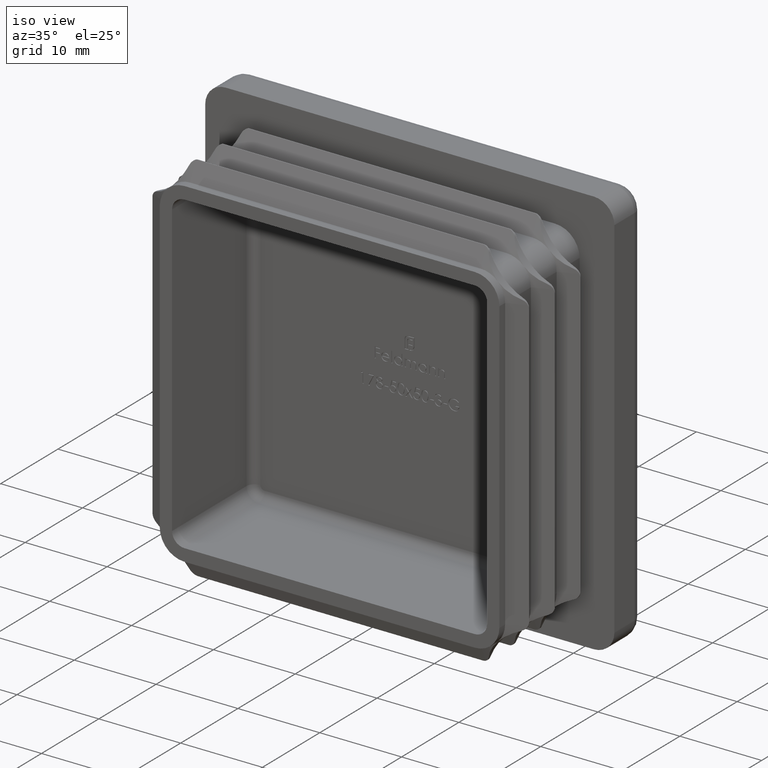
[diagram: clean part render]
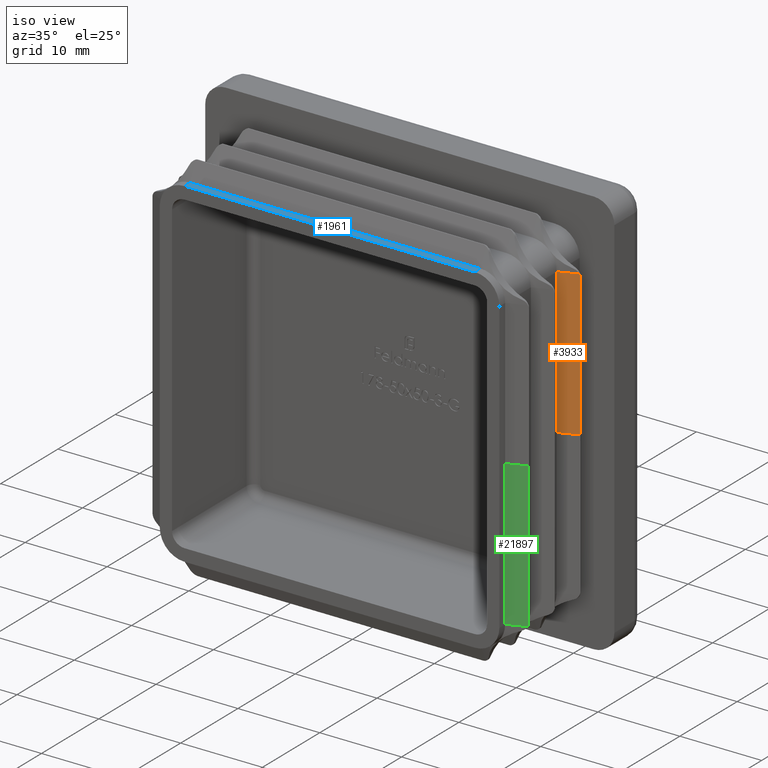
[diagram: same view with three faces highlighted in distinct colors, each labeled with its STEP entity id]
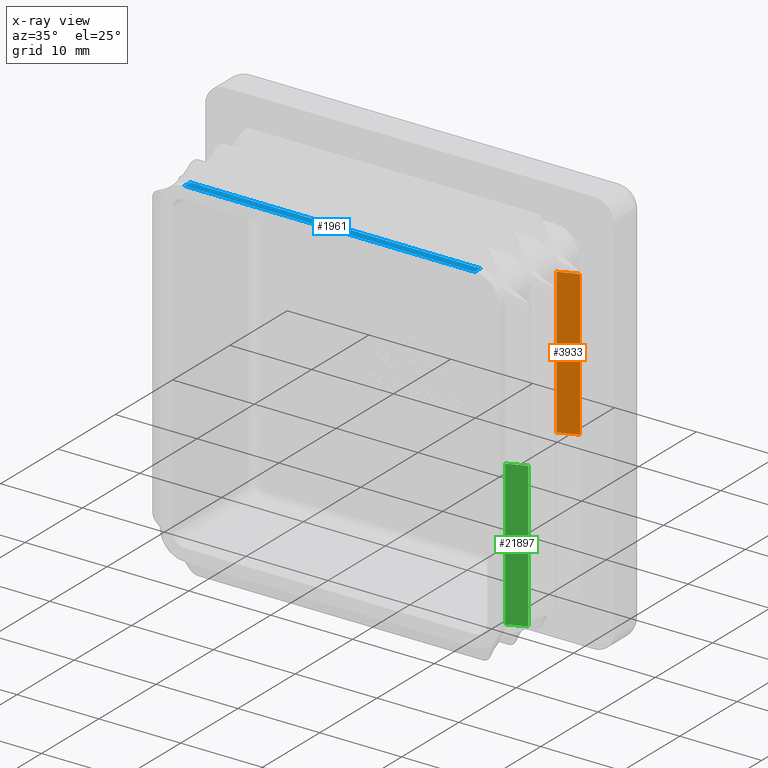
[diagram: x-ray of the same camera — body ghosted, the three highlighted faces saturated]
A machine part, iso view with three faces highlighted in distinct colors.
The next image is the same camera in x-ray (body ghosted, the three faces saturated) — at least one of them is partly hidden behind the body in this view.
Their STEP definitions:

[orange] entity #3933 — the highlighted planar face has unit normal (-0.3772, 0.9261, 0).
#355 = VERTEX_POINT ( 'NONE', #3797 ) ;
#538 = CARTESIAN_POINT ( 'NONE',  ( 22.96885971462460674, -3.096306707551701454, 0.000000000000000000 ) ) ;
#789 = CARTESIAN_POINT ( 'NONE',  ( 22.95416890698572132, -3.102289953917574561, 17.64006869561543667 ) ) ;
#1525 = VECTOR ( 'NONE', #12721, 1000.000000000000000 ) ;
#2774 = CARTESIAN_POINT ( 'NONE',  ( 22.90981028720149482, -3.120356254773394511, 17.75000000000000000 ) ) ;
#3001 = ORIENTED_EDGE ( 'NONE', *, *, #22744, .F. ) ;
#3446 =( BOUNDED_CURVE ( )  B_SPLINE_CURVE ( 3, ( #11449, #21744, #789, #5890 ),
 .UNSPECIFIED., .F., .F. ) 
 B_SPLINE_CURVE_WITH_KNOTS ( ( 4, 4 ),
 ( 2.713623046955971674, 2.891379701794870360 ),
 .UNSPECIFIED. ) 
 CURVE ( )  GEOMETRIC_REPRESENTATION_ITEM ( )  RATIONAL_B_SPLINE_CURVE ( ( 1.000000000000000000, 0.9973686138443194071, 0.9973686138443194071, 1.000000000000000000 ) ) 
 REPRESENTATION_ITEM ( '' )  );
#3797 = CARTESIAN_POINT ( 'NONE',  ( 20.74999999999999645, -4.000000000000003553, 0.000000000000000000 ) ) ;
#3933 = ADVANCED_FACE ( 'NONE', ( #7899 ), #13630, .F. ) ;
#5840 = EDGE_LOOP ( 'NONE', ( #12444, #3001, #17323, #19068, #18056 ) ) ;
#5890 = CARTESIAN_POINT ( 'NONE',  ( 22.96885971462460674, -3.096306707551701454, 17.58258589888762202 ) ) ;
#6480 = VERTEX_POINT ( 'NONE', #16179 ) ;
#6854 = EDGE_CURVE ( 'NONE', #355, #13058, #9752, .T. ) ;
#7485 = VECTOR ( 'NONE', #13345, 1000.000000000000000 ) ;
#7899 = FACE_OUTER_BOUND ( 'NONE', #5840, .T. ) ;
#8289 = DIRECTION ( 'NONE',  ( -0.9261341510340125316, -0.3771942924919582385, 0.000000000000000000 ) ) ;
#9752 = LINE ( 'NONE', #18984, #21641 ) ;
#10126 = EDGE_CURVE ( 'NONE', #6480, #13058, #14394, .T. ) ;
#10788 = CARTESIAN_POINT ( 'NONE',  ( 20.74999999999999645, -4.000000000000000000, 17.75000000000000000 ) ) ;
#11449 = CARTESIAN_POINT ( 'NONE',  ( 22.90981028720149482, -3.120356254773394511, 17.75000000000000000 ) ) ;
#11929 = CARTESIAN_POINT ( 'NONE',  ( 22.96885971462460674, -3.096306707551701010, 17.75000000000000000 ) ) ;
#12444 = ORIENTED_EDGE ( 'NONE', *, *, #19757, .F. ) ;
#12721 = DIRECTION ( 'NONE',  ( 0.000000000000000000, 0.000000000000000000, -1.000000000000000000 ) ) ;
#13042 = DIRECTION ( 'NONE',  ( 0.9261341510340124206, 0.3771942924919582385, 0.000000000000000000 ) ) ;
#13058 = VERTEX_POINT ( 'NONE', #538 ) ;
#13345 = DIRECTION ( 'NONE',  ( 0.000000000000000000, 0.000000000000000000, -1.000000000000000000 ) ) ;
#13630 = PLANE ( 'NONE',  #22242 ) ;
#14287 = VERTEX_POINT ( 'NONE', #10788 ) ;
#14366 = VECTOR ( 'NONE', #13042, 1000.000000000000114 ) ;
#14394 = LINE ( 'NONE', #15129, #7485 ) ;
#14431 = CARTESIAN_POINT ( 'NONE',  ( 20.74999999999999645, -4.000000000000000888, 17.75000000000000000 ) ) ;
#15129 = CARTESIAN_POINT ( 'NONE',  ( 22.96885971462460674, -3.096306707551701454, 17.75000000000000000 ) ) ;
#15944 = VERTEX_POINT ( 'NONE', #2774 ) ;
#16179 = CARTESIAN_POINT ( 'NONE',  ( 22.96885971462460674, -3.096306707551701454, 17.58258589888762202 ) ) ;
#17129 = DIRECTION ( 'NONE',  ( -0.3771942924919582385, 0.9261341510340125316, 0.000000000000000000 ) ) ;
#17275 = EDGE_CURVE ( 'NONE', #14287, #355, #18961, .T. ) ;
#17323 = ORIENTED_EDGE ( 'NONE', *, *, #17275, .T. ) ;
#17719 = LINE ( 'NONE', #21952, #14366 ) ;
#18056 = ORIENTED_EDGE ( 'NONE', *, *, #10126, .F. ) ;
#18961 = LINE ( 'NONE', #14431, #1525 ) ;
#18984 = CARTESIAN_POINT ( 'NONE',  ( 22.96885971462460674, -3.096306707551701010, 0.000000000000000000 ) ) ;
#19068 = ORIENTED_EDGE ( 'NONE', *, *, #6854, .T. ) ;
#19757 = EDGE_CURVE ( 'NONE', #15944, #6480, #3446, .T. ) ;
#20839 = DIRECTION ( 'NONE',  ( 0.9261341510340124206, 0.3771942924919582385, 0.000000000000000000 ) ) ;
#21641 = VECTOR ( 'NONE', #20839, 1000.000000000000114 ) ;
#21744 = CARTESIAN_POINT ( 'NONE',  ( 22.93443383391327828, -3.110327619861026793, 17.69602062712418089 ) ) ;
#21952 = CARTESIAN_POINT ( 'NONE',  ( 22.96885971462460674, -3.096306707551701010, 17.75000000000000000 ) ) ;
#22242 = AXIS2_PLACEMENT_3D ( 'NONE', #11929, #17129, #8289 ) ;
#22744 = EDGE_CURVE ( 'NONE', #14287, #15944, #17719, .T. ) ;

[blue] entity #1961 — the highlighted planar face has unit normal (-0, 0, -1).
#483 = EDGE_CURVE ( 'NONE', #18456, #10805, #17951, .T. ) ;
#652 = EDGE_CURVE ( 'NONE', #17264, #4864, #18793, .T. ) ;
#747 = DIRECTION ( 'NONE',  ( 1.000000000000000000, 0.000000000000000000, -9.773090005503139098E-17 ) ) ;
#1083 = EDGE_LOOP ( 'NONE', ( #11008, #17296, #11742, #3085 ) ) ;
#1961 = ADVANCED_FACE ( 'NONE', ( #4350 ), #2026, .F. ) ;
#2026 = PLANE ( 'NONE',  #7388 ) ;
#3085 = ORIENTED_EDGE ( 'NONE', *, *, #12467, .T. ) ;
#3708 = CARTESIAN_POINT ( 'NONE',  ( 17.74999999999999645, -13.00000000000004086, 20.75000000000000000 ) ) ;
#3802 = CARTESIAN_POINT ( 'NONE',  ( -17.75000000000000355, -14.00000000000000000, 20.75000000000000355 ) ) ;
#4350 = FACE_OUTER_BOUND ( 'NONE', #1083, .T. ) ;
#4864 = VERTEX_POINT ( 'NONE', #17079 ) ;
#6598 = VECTOR ( 'NONE', #12288, 1000.000000000000000 ) ;
#7024 = CARTESIAN_POINT ( 'NONE',  ( 17.74999999999999645, -14.00000000000000000, 20.75000000000000000 ) ) ;
#7181 = DIRECTION ( 'NONE',  ( -0.000000000000000000, 1.000000000000000000, -0.000000000000000000 ) ) ;
#7297 = DIRECTION ( 'NONE',  ( -0.000000000000000000, 1.000000000000000000, -0.000000000000000000 ) ) ;
#7388 = AXIS2_PLACEMENT_3D ( 'NONE', #3802, #19900, #16176 ) ;
#10198 = LINE ( 'NONE', #17742, #21037 ) ;
#10805 = VERTEX_POINT ( 'NONE', #3708 ) ;
#11008 = ORIENTED_EDGE ( 'NONE', *, *, #483, .F. ) ;
#11321 = CARTESIAN_POINT ( 'NONE',  ( -17.75000000000000355, -13.00000000000000178, 20.75000000000010303 ) ) ;
#11742 = ORIENTED_EDGE ( 'NONE', *, *, #652, .F. ) ;
#12288 = DIRECTION ( 'NONE',  ( -1.000000000000000000, -0.000000000000000000, 9.773090005503139098E-17 ) ) ;
#12467 = EDGE_CURVE ( 'NONE', #17264, #10805, #10198, .T. ) ;
#16176 = DIRECTION ( 'NONE',  ( -1.000000000000000000, 0.000000000000000000, 9.773090005503139098E-17 ) ) ;
#17079 = CARTESIAN_POINT ( 'NONE',  ( -17.75000000000000355, -14.00000000000000000, 20.75000000000000355 ) ) ;
#17264 = VERTEX_POINT ( 'NONE', #7024 ) ;
#17296 = ORIENTED_EDGE ( 'NONE', *, *, #18584, .F. ) ;
#17742 = CARTESIAN_POINT ( 'NONE',  ( 17.74999999999999645, -14.00000000000000000, 20.75000000000000000 ) ) ;
#17951 = LINE ( 'NONE', #11321, #22116 ) ;
#18456 = VERTEX_POINT ( 'NONE', #19037 ) ;
#18584 = EDGE_CURVE ( 'NONE', #4864, #18456, #20341, .T. ) ;
#18793 = LINE ( 'NONE', #22901, #6598 ) ;
#19037 = CARTESIAN_POINT ( 'NONE',  ( -17.75000000000000355, -13.00000000000003908, 20.75000000000000355 ) ) ;
#19412 = CARTESIAN_POINT ( 'NONE',  ( -17.75000000000000355, -14.00000000000000000, 20.75000000000000355 ) ) ;
#19900 = DIRECTION ( 'NONE',  ( -9.773090005503139098E-17, 0.000000000000000000, -1.000000000000000000 ) ) ;
#20341 = LINE ( 'NONE', #19412, #21693 ) ;
#21037 = VECTOR ( 'NONE', #7297, 1000.000000000000000 ) ;
#21693 = VECTOR ( 'NONE', #7181, 1000.000000000000000 ) ;
#22116 = VECTOR ( 'NONE', #747, 1000.000000000000000 ) ;
#22901 = CARTESIAN_POINT ( 'NONE',  ( -17.75000000000000355, -14.00000000000000000, 20.75000000000000355 ) ) ;

[green] entity #21897 — the highlighted planar face has unit normal (-0.3772, 0.9261, 0).
#102 = LINE ( 'NONE', #16442, #18367 ) ;
#517 = VECTOR ( 'NONE', #1329, 1000.000000000000000 ) ;
#766 = EDGE_CURVE ( 'NONE', #4188, #11803, #16285, .T. ) ;
#1329 = DIRECTION ( 'NONE',  ( 0.000000000000000000, 0.000000000000000000, -1.000000000000000000 ) ) ;
#3114 = ORIENTED_EDGE ( 'NONE', *, *, #766, .F. ) ;
#4188 = VERTEX_POINT ( 'NONE', #7051 ) ;
#4301 = CARTESIAN_POINT ( 'NONE',  ( 22.96885971462469911, -12.09630670755170279, -17.58258589888725965 ) ) ;
#5087 = VERTEX_POINT ( 'NONE', #14624 ) ;
#5105 = LINE ( 'NONE', #6305, #7577 ) ;
#5855 = EDGE_LOOP ( 'NONE', ( #13093, #16886, #3114, #7172, #16925 ) ) ;
#6018 = CARTESIAN_POINT ( 'NONE',  ( 22.95416890698579948, -12.10228995391757323, -17.64006869561519508 ) ) ;
#6101 = EDGE_CURVE ( 'NONE', #5087, #14951, #102, .T. ) ;
#6305 = CARTESIAN_POINT ( 'NONE',  ( 20.75000000000009592, -13.00000000000000178, 0.000000000000000000 ) ) ;
#7051 = CARTESIAN_POINT ( 'NONE',  ( 22.96885971462469911, -12.09630670755170279, 0.000000000000000000 ) ) ;
#7172 = ORIENTED_EDGE ( 'NONE', *, *, #17960, .F. ) ;
#7306 = AXIS2_PLACEMENT_3D ( 'NONE', #21714, #22028, #11100 ) ;
#7364 = CARTESIAN_POINT ( 'NONE',  ( 22.90981028720149482, -12.12035625477343537, -17.75000000000000711 ) ) ;
#7406 = CARTESIAN_POINT ( 'NONE',  ( 22.96885971462469911, -12.09630670755170279, -17.58258589888725965 ) ) ;
#7577 = VECTOR ( 'NONE', #8069, 1000.000000000000000 ) ;
#7773 = DIRECTION ( 'NONE',  ( 0.9261341510340124206, 0.3771942924919582940, 0.000000000000000000 ) ) ;
#7863 = VECTOR ( 'NONE', #10362, 1000.000000000000114 ) ;
#8069 = DIRECTION ( 'NONE',  ( 0.000000000000000000, 0.000000000000000000, -1.000000000000000000 ) ) ;
#8667 = LINE ( 'NONE', #20998, #7863 ) ;
#8772 = CARTESIAN_POINT ( 'NONE',  ( 20.74999999999999645, -13.00000000000004086, 0.000000000000000000 ) ) ;
#9406 = CARTESIAN_POINT ( 'NONE',  ( 22.93443383391333512, -12.11032761986104056, -17.69602062712407431 ) ) ;
#10362 = DIRECTION ( 'NONE',  ( 0.9261341510340124206, 0.3771942924919582940, 0.000000000000000000 ) ) ;
#10939 =( BOUNDED_CURVE ( )  B_SPLINE_CURVE ( 3, ( #14583, #9406, #6018, #4301 ),
 .UNSPECIFIED., .F., .F. ) 
 B_SPLINE_CURVE_WITH_KNOTS ( ( 4, 4 ),
 ( 2.713623046955965457, 2.891379701795243395 ),
 .UNSPECIFIED. ) 
 CURVE ( )  GEOMETRIC_REPRESENTATION_ITEM ( )  RATIONAL_B_SPLINE_CURVE ( ( 1.000000000000000000, 0.9973686138443083049, 0.9973686138443083049, 1.000000000000000000 ) ) 
 REPRESENTATION_ITEM ( '' )  );
#11100 = DIRECTION ( 'NONE',  ( -0.9261341510340124206, -0.3771942924919582940, 0.000000000000000000 ) ) ;
#11803 = VERTEX_POINT ( 'NONE', #7406 ) ;
#13093 = ORIENTED_EDGE ( 'NONE', *, *, #6101, .T. ) ;
#14583 = CARTESIAN_POINT ( 'NONE',  ( 22.90981028720149482, -12.12035625477343537, -17.75000000000000711 ) ) ;
#14624 = CARTESIAN_POINT ( 'NONE',  ( 20.74999999999999645, -13.00000000000004086, -17.75000000000000355 ) ) ;
#14951 = VERTEX_POINT ( 'NONE', #7364 ) ;
#15769 = CARTESIAN_POINT ( 'NONE',  ( 22.96885971462469911, -12.09630670755170279, 0.000000000000000000 ) ) ;
#16285 = LINE ( 'NONE', #15769, #517 ) ;
#16442 = CARTESIAN_POINT ( 'NONE',  ( 22.96885971462469911, -12.09630670755170279, -17.75000000000000711 ) ) ;
#16886 = ORIENTED_EDGE ( 'NONE', *, *, #21867, .T. ) ;
#16925 = ORIENTED_EDGE ( 'NONE', *, *, #17828, .T. ) ;
#17828 = EDGE_CURVE ( 'NONE', #18963, #5087, #5105, .T. ) ;
#17960 = EDGE_CURVE ( 'NONE', #18963, #4188, #8667, .T. ) ;
#18302 = FACE_OUTER_BOUND ( 'NONE', #5855, .T. ) ;
#18367 = VECTOR ( 'NONE', #7773, 1000.000000000000114 ) ;
#18963 = VERTEX_POINT ( 'NONE', #8772 ) ;
#20998 = CARTESIAN_POINT ( 'NONE',  ( 22.96885971462469911, -12.09630670755170279, 0.000000000000000000 ) ) ;
#21714 = CARTESIAN_POINT ( 'NONE',  ( 22.96885971462469911, -12.09630670755170279, 0.000000000000000000 ) ) ;
#21867 = EDGE_CURVE ( 'NONE', #14951, #11803, #10939, .T. ) ;
#21897 = ADVANCED_FACE ( 'NONE', ( #18302 ), #21956, .F. ) ;
#21956 = PLANE ( 'NONE',  #7306 ) ;
#22028 = DIRECTION ( 'NONE',  ( -0.3771942924919582940, 0.9261341510340124206, 0.000000000000000000 ) ) ;